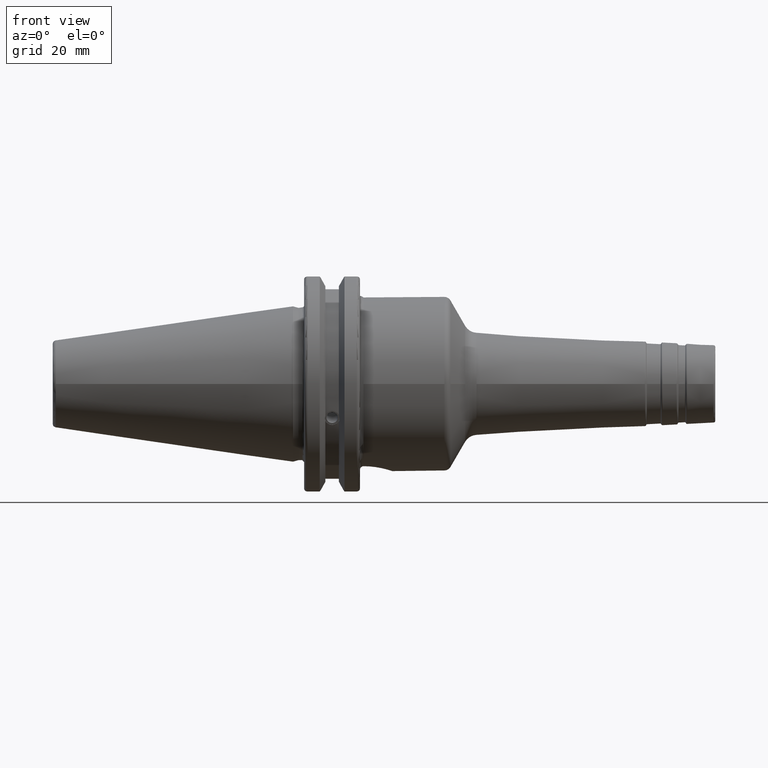
[diagram: clean part render]
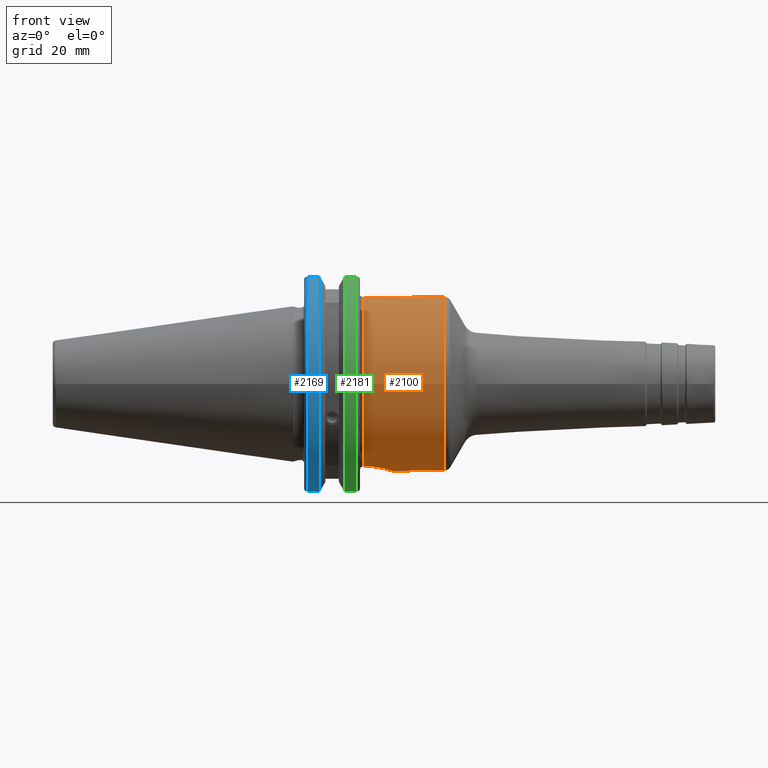
[diagram: same view with three faces highlighted in distinct colors, each labeled with its STEP entity id]
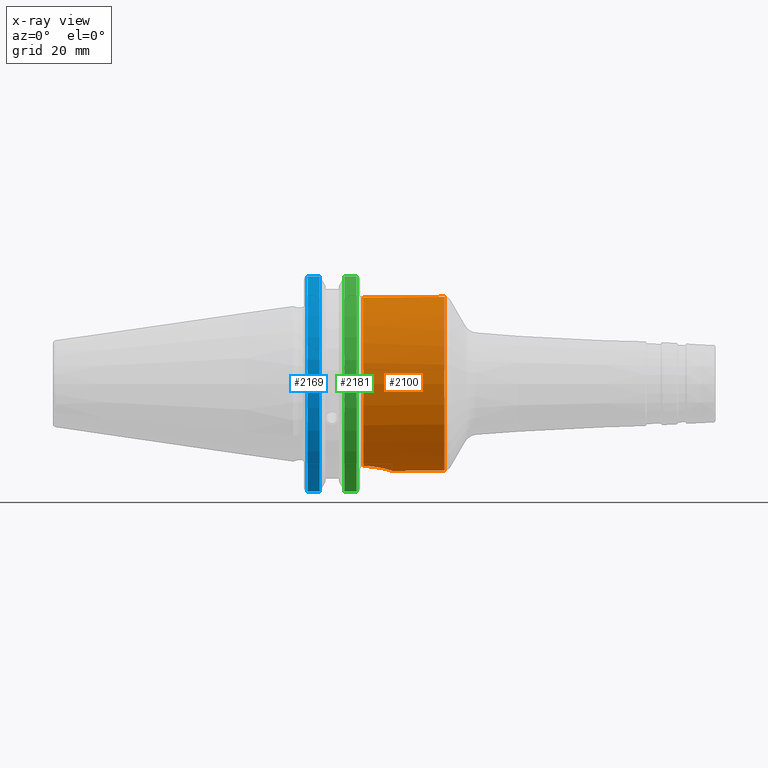
[diagram: x-ray of the same camera — body ghosted, the three highlighted faces saturated]
A machine part, front view with three faces highlighted in distinct colors.
The next image is the same camera in x-ray (body ghosted, the three faces saturated) — at least one of them is partly hidden behind the body in this view.
Their STEP definitions:

[orange] entity #2100 — the highlighted cylindrical surface (bore or boss wall) has radius 24.75 mm, axis along (1, 0, 0).
#122=B_SPLINE_CURVE_WITH_KNOTS('',3,(#3341,#3342,#3343,#3344,#3345,#3346,
#3347,#3348,#3349,#3350,#3351,#3352,#3353,#3354,#3355,#3356,#3357,#3358),
 .UNSPECIFIED.,.F.,.F.,(4,2,2,2,2,2,2,2,4),(-2.48845986202559,-2.17733241913027,
-1.86620497623495,-1.55521745362387,-1.24422993101279,-0.933242408401712,
-0.622254885790633,-0.311127442895316,0.),.UNSPECIFIED.);
#156=CYLINDRICAL_SURFACE('',#2239,24.75);
#189=FACE_OUTER_BOUND('',#299,.T.);
#299=EDGE_LOOP('',(#1416,#1417,#1418,#1419,#1420,#1421,#1422,#1423));
#421=LINE('',#3371,#522);
#522=VECTOR('',#2573,24.75);
#627=CIRCLE('',#2240,24.75);
#628=CIRCLE('',#2241,24.75);
#629=CIRCLE('',#2242,24.75);
#630=CIRCLE('',#2243,24.75);
#631=CIRCLE('',#2244,24.75);
#806=VERTEX_POINT('',#3339);
#807=VERTEX_POINT('',#3340);
#810=VERTEX_POINT('',#3365);
#811=VERTEX_POINT('',#3366);
#812=VERTEX_POINT('',#3368);
#813=VERTEX_POINT('',#3370);
#1055=EDGE_CURVE('',#806,#807,#122,.T.);
#1059=EDGE_CURVE('',#810,#811,#627,.T.);
#1060=EDGE_CURVE('',#812,#810,#628,.T.);
#1061=EDGE_CURVE('',#812,#813,#421,.T.);
#1062=EDGE_CURVE('',#806,#813,#629,.T.);
#1063=EDGE_CURVE('',#813,#807,#630,.T.);
#1064=EDGE_CURVE('',#811,#812,#631,.T.);
#1416=ORIENTED_EDGE('',*,*,#1059,.F.);
#1417=ORIENTED_EDGE('',*,*,#1060,.F.);
#1418=ORIENTED_EDGE('',*,*,#1061,.T.);
#1419=ORIENTED_EDGE('',*,*,#1062,.F.);
#1420=ORIENTED_EDGE('',*,*,#1055,.T.);
#1421=ORIENTED_EDGE('',*,*,#1063,.F.);
#1422=ORIENTED_EDGE('',*,*,#1061,.F.);
#1423=ORIENTED_EDGE('',*,*,#1064,.F.);
#2100=ADVANCED_FACE('',(#189),#156,.T.);
#2239=AXIS2_PLACEMENT_3D('',#3364,#2567,#2568);
#2240=AXIS2_PLACEMENT_3D('',#3367,#2569,#2570);
#2241=AXIS2_PLACEMENT_3D('',#3369,#2571,#2572);
#2242=AXIS2_PLACEMENT_3D('',#3372,#2574,#2575);
#2243=AXIS2_PLACEMENT_3D('',#3373,#2576,#2577);
#2244=AXIS2_PLACEMENT_3D('',#3374,#2578,#2579);
#2567=DIRECTION('center_axis',(1.,0.,0.));
#2568=DIRECTION('ref_axis',(0.,1.,0.));
#2569=DIRECTION('center_axis',(1.,0.,0.));
#2570=DIRECTION('ref_axis',(0.,-1.,1.83697019872103E-16));
#2571=DIRECTION('center_axis',(1.,0.,0.));
#2572=DIRECTION('ref_axis',(0.,-1.,1.83697019872103E-16));
#2573=DIRECTION('',(-1.,0.,0.));
#2574=DIRECTION('center_axis',(-1.,0.,0.));
#2575=DIRECTION('ref_axis',(0.,6.12323399573677E-17,1.));
#2576=DIRECTION('center_axis',(-1.,0.,0.));
#2577=DIRECTION('ref_axis',(0.,6.12323399573677E-17,1.));
#2578=DIRECTION('center_axis',(1.,0.,0.));
#2579=DIRECTION('ref_axis',(0.,-1.,1.83697019872103E-16));
#3339=CARTESIAN_POINT('',(20.05,-8.19,-23.3556502799644));
#3340=CARTESIAN_POINT('',(20.05,8.18999999999999,-23.3556502799644));
#3341=CARTESIAN_POINT('Ctrl Pts',(20.05,-8.19,-23.3556502799644));
#3342=CARTESIAN_POINT('Ctrl Pts',(21.0870914763177,-8.19,-23.3556502799644));
#3343=CARTESIAN_POINT('Ctrl Pts',(22.1874172494719,-7.98112852617488,-23.4319820145953));
#3344=CARTESIAN_POINT('Ctrl Pts',(24.2026226557734,-7.14301766428651,-23.7009173446597));
#3345=CARTESIAN_POINT('Ctrl Pts',(25.1182638848105,-6.51414519102515,-23.8889373554493));
#3346=CARTESIAN_POINT('Ctrl Pts',(26.563820070037,-5.06858900579863,-24.2368381566145));
#3347=CARTESIAN_POINT('Ctrl Pts',(27.1929429534371,-4.15281808103606,-24.420258379043));
#3348=CARTESIAN_POINT('Ctrl Pts',(28.0312404144778,-2.13713243178097,-24.6784841969774));
#3349=CARTESIAN_POINT('Ctrl Pts',(28.24,-1.03662507537027,-24.75));
#3350=CARTESIAN_POINT('Ctrl Pts',(28.24,1.03662507537027,-24.75));
#3351=CARTESIAN_POINT('Ctrl Pts',(28.0312404144778,2.13713243178098,-24.6784841969774));
#3352=CARTESIAN_POINT('Ctrl Pts',(27.1929429534371,4.15281808103607,-24.420258379043));
#3353=CARTESIAN_POINT('Ctrl Pts',(26.563820070037,5.06858900579863,-24.2368381566145));
#3354=CARTESIAN_POINT('Ctrl Pts',(25.1182638848105,6.51414519102515,-23.8889373554493));
#3355=CARTESIAN_POINT('Ctrl Pts',(24.2026226557734,7.14301766428652,-23.7009173446597));
#3356=CARTESIAN_POINT('Ctrl Pts',(22.1874172494719,7.98112852617489,-23.4319820145953));
#3357=CARTESIAN_POINT('Ctrl Pts',(21.0870914763177,8.19,-23.3556502799644));
#3358=CARTESIAN_POINT('Ctrl Pts',(20.05,8.19,-23.3556502799644));
#3364=CARTESIAN_POINT('Origin',(31.6147344910056,0.,0.));
#3365=CARTESIAN_POINT('',(43.024768443632,24.75,-1.51550041394485E-15));
#3366=CARTESIAN_POINT('',(43.024768443632,-3.0310008278897E-15,24.75));
#3367=CARTESIAN_POINT('Origin',(43.024768443632,0.,0.));
#3368=CARTESIAN_POINT('',(43.024768443632,-24.75,-3.0310008278897E-15));
#3369=CARTESIAN_POINT('Origin',(43.024768443632,0.,0.));
#3370=CARTESIAN_POINT('',(20.05,-24.75,-3.0310008278897E-15));
#3371=CARTESIAN_POINT('',(31.6147344910056,-24.75,-3.0310008278897E-15));
#3372=CARTESIAN_POINT('Origin',(20.05,0.,0.));
#3373=CARTESIAN_POINT('Origin',(20.05,0.,0.));
#3374=CARTESIAN_POINT('Origin',(43.024768443632,0.,0.));

[blue] entity #2169 — the highlighted cylindrical surface (partial cylindrical patch) has radius 31.75 mm, axis along (1, 0, 0).
#175=CYLINDRICAL_SURFACE('',#2464,31.75);
#258=FACE_OUTER_BOUND('',#378,.T.);
#378=EDGE_LOOP('',(#1903,#1904,#1905,#1906));
#494=LINE('',#4135,#595);
#495=LINE('',#4141,#596);
#595=VECTOR('',#3090,10.);
#596=VECTOR('',#3093,10.);
#764=CIRCLE('',#2462,31.75);
#765=CIRCLE('',#2465,31.75);
#1006=VERTEX_POINT('',#4114);
#1007=VERTEX_POINT('',#4123);
#1008=VERTEX_POINT('',#4134);
#1009=VERTEX_POINT('',#4140);
#1324=EDGE_CURVE('',#1006,#1007,#764,.T.);
#1326=EDGE_CURVE('',#1007,#1008,#494,.T.);
#1328=EDGE_CURVE('',#1009,#1006,#495,.T.);
#1329=EDGE_CURVE('',#1008,#1009,#765,.T.);
#1903=ORIENTED_EDGE('',*,*,#1324,.F.);
#1904=ORIENTED_EDGE('',*,*,#1328,.F.);
#1905=ORIENTED_EDGE('',*,*,#1329,.F.);
#1906=ORIENTED_EDGE('',*,*,#1326,.F.);
#2169=ADVANCED_FACE('',(#258),#175,.T.);
#2462=AXIS2_PLACEMENT_3D('',#4124,#3086,#3087);
#2464=AXIS2_PLACEMENT_3D('',#4139,#3091,#3092);
#2465=AXIS2_PLACEMENT_3D('',#4142,#3094,#3095);
#3086=DIRECTION('center_axis',(-1.,0.,0.));
#3087=DIRECTION('ref_axis',(0.,-1.,1.60812264967664E-16));
#3090=DIRECTION('',(1.,0.,0.));
#3091=DIRECTION('center_axis',(1.,0.,0.));
#3092=DIRECTION('ref_axis',(0.,-1.,1.22464679914735E-16));
#3093=DIRECTION('',(-1.,0.,0.));
#3094=DIRECTION('center_axis',(1.,0.,0.));
#3095=DIRECTION('ref_axis',(0.,0.,-1.));
#4114=CARTESIAN_POINT('',(4.175,-8.67204822802685,-30.5427254764662));
#4123=CARTESIAN_POINT('',(4.175,-8.67204822802685,30.5427254764662));
#4124=CARTESIAN_POINT('Origin',(4.175,0.,0.));
#4134=CARTESIAN_POINT('',(7.60793323092436,-8.67204822802685,30.5427254764662));
#4135=CARTESIAN_POINT('',(5.39146661546218,-8.67204822802685,30.5427254764662));
#4139=CARTESIAN_POINT('Origin',(5.39146661546218,0.,0.));
#4140=CARTESIAN_POINT('',(7.60793323092436,-8.67204822802685,-30.5427254764662));
#4141=CARTESIAN_POINT('',(5.39146661546218,-8.67204822802685,-30.5427254764662));
#4142=CARTESIAN_POINT('Origin',(7.60793323092436,0.,0.));

[green] entity #2181 — the highlighted cylindrical surface (partial cylindrical patch) has radius 31.75 mm, axis along (1, 0, 0).
#176=CYLINDRICAL_SURFACE('',#2488,31.75);
#270=FACE_OUTER_BOUND('',#391,.T.);
#391=EDGE_LOOP('',(#1967,#1968,#1969,#1970));
#506=LINE('',#4219,#607);
#507=LINE('',#4221,#608);
#607=VECTOR('',#3150,10.);
#608=VECTOR('',#3153,10.);
#728=CIRCLE('',#2389,31.75);
#763=CIRCLE('',#2458,31.75);
#925=VERTEX_POINT('',#3753);
#926=VERTEX_POINT('',#3757);
#997=VERTEX_POINT('',#4058);
#998=VERTEX_POINT('',#4067);
#1211=EDGE_CURVE('',#926,#925,#728,.T.);
#1308=EDGE_CURVE('',#997,#998,#763,.T.);
#1356=EDGE_CURVE('',#998,#925,#506,.T.);
#1357=EDGE_CURVE('',#926,#997,#507,.T.);
#1967=ORIENTED_EDGE('',*,*,#1308,.F.);
#1968=ORIENTED_EDGE('',*,*,#1357,.F.);
#1969=ORIENTED_EDGE('',*,*,#1211,.T.);
#1970=ORIENTED_EDGE('',*,*,#1356,.F.);
#2181=ADVANCED_FACE('',(#270),#176,.T.);
#2389=AXIS2_PLACEMENT_3D('',#3758,#2899,#2900);
#2458=AXIS2_PLACEMENT_3D('',#4068,#3069,#3070);
#2488=AXIS2_PLACEMENT_3D('',#4220,#3151,#3152);
#2899=DIRECTION('center_axis',(1.,0.,0.));
#2900=DIRECTION('ref_axis',(0.,0.,-1.));
#3069=DIRECTION('center_axis',(1.,0.,0.));
#3070=DIRECTION('ref_axis',(0.,-1.,1.60812264967664E-16));
#3150=DIRECTION('',(-1.,0.,0.));
#3151=DIRECTION('center_axis',(1.,0.,0.));
#3152=DIRECTION('ref_axis',(0.,-1.,1.22464679914735E-16));
#3153=DIRECTION('',(1.,0.,0.));
#3753=CARTESIAN_POINT('',(14.6602667690756,-8.67204822802686,-30.5427254764662));
#3757=CARTESIAN_POINT('',(14.6602667690756,-8.67204822802685,30.5427254764662));
#3758=CARTESIAN_POINT('Origin',(14.6602667690756,0.,0.));
#4058=CARTESIAN_POINT('',(18.05,-8.67204822802685,30.5427254764662));
#4067=CARTESIAN_POINT('',(18.05,-8.67204822802686,-30.5427254764662));
#4068=CARTESIAN_POINT('Origin',(18.05,0.,0.));
#4219=CARTESIAN_POINT('',(16.8551333845378,-8.67204822802686,-30.5427254764662));
#4220=CARTESIAN_POINT('Origin',(16.8551333845378,0.,0.));
#4221=CARTESIAN_POINT('',(16.8551333845378,-8.67204822802685,30.5427254764662));